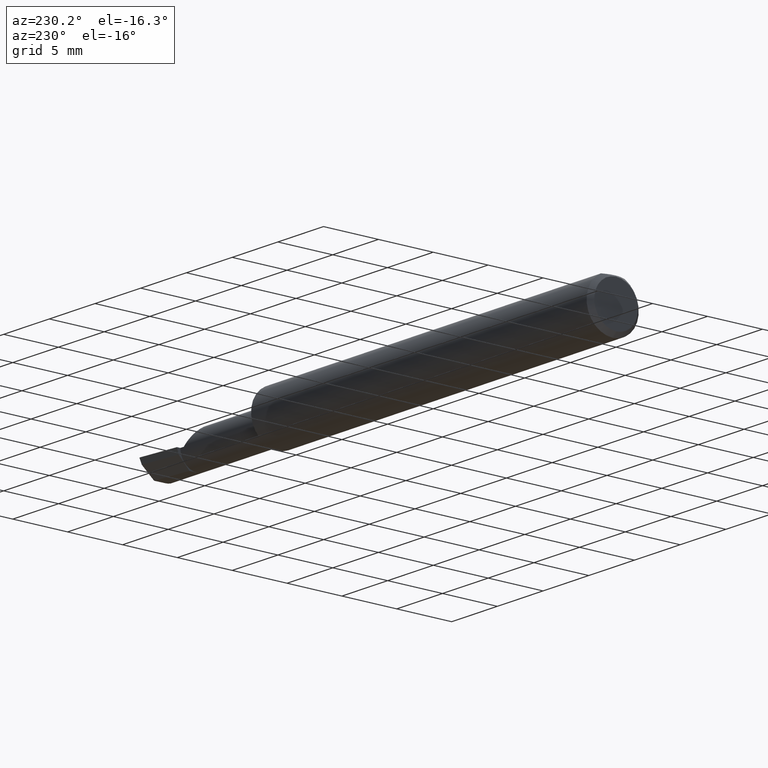
[diagram: clean part render]
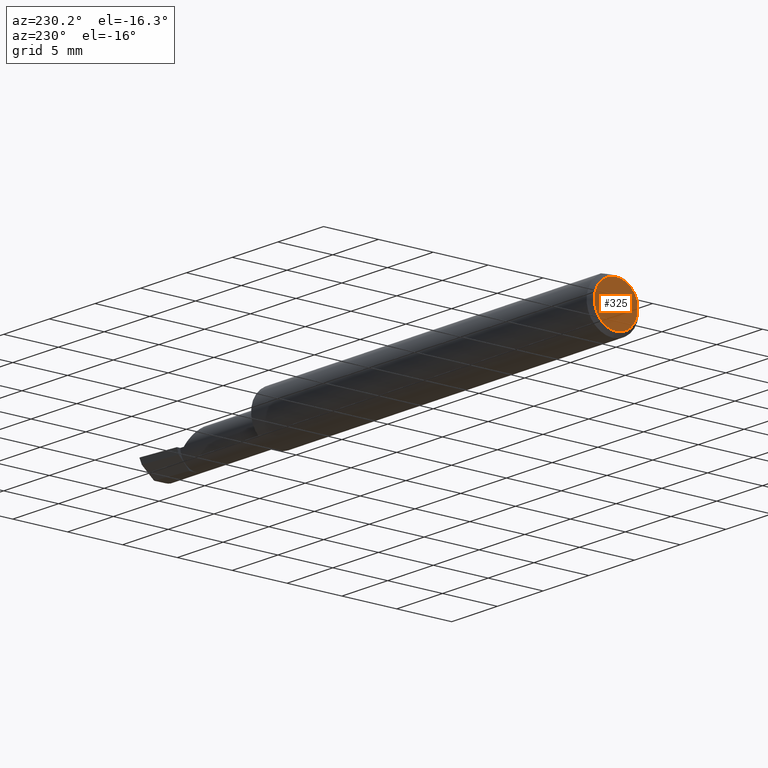
[diagram: same view with one face highlighted and labeled with its STEP entity id]
A machine part, auxiliary view. The second image highlights one B-rep face of the part: STEP entity #325.
In plain terms, the highlighted planar face has unit normal (1, 0, 0).
Its self-contained STEP definition (entity closure, byte-faithful):
#42 = DIRECTION ( 'NONE',  ( 1.000000000000000000, 0.0000000000000000000, 0.0000000000000000000 ) ) ;
#68 = AXIS2_PLACEMENT_3D ( 'NONE', #272, #487, #85 ) ;
#72 = DIRECTION ( 'NONE',  ( -1.000000000000000000, -0.0000000000000000000, -0.0000000000000000000 ) ) ;
#85 = DIRECTION ( 'NONE',  ( 0.0000000000000000000, 0.0000000000000000000, 1.000000000000000000 ) ) ;
#155 = CIRCLE ( 'NONE', #656, 0.07859999999999965625 ) ;
#188 = CIRCLE ( 'NONE', #68, 0.07859999999999965625 ) ;
#203 = ORIENTED_EDGE ( 'NONE', *, *, #280, .T. ) ;
#213 = CARTESIAN_POINT ( 'NONE',  ( 0.0000000000000000000, 0.0000000000000000000, 0.0000000000000000000 ) ) ;
#272 = CARTESIAN_POINT ( 'NONE',  ( 0.0000000000000000000, 0.0000000000000000000, 0.0000000000000000000 ) ) ;
#278 = PLANE ( 'NONE',  #387 ) ;
#280 = EDGE_CURVE ( 'NONE', #355, #555, #188, .T. ) ;
#325 = ADVANCED_FACE ( 'NONE', ( #339 ), #278, .F. ) ;
#339 = FACE_OUTER_BOUND ( 'NONE', #647, .T. ) ;
#355 = VERTEX_POINT ( 'NONE', #649 ) ;
#382 = CARTESIAN_POINT ( 'NONE',  ( 0.0000000000000000000, 0.0000000000000000000, 0.0000000000000000000 ) ) ;
#387 = AXIS2_PLACEMENT_3D ( 'NONE', #382, #42, #497 ) ;
#414 = DIRECTION ( 'NONE',  ( 0.0000000000000000000, 0.0000000000000000000, 1.000000000000000000 ) ) ;
#487 = DIRECTION ( 'NONE',  ( -1.000000000000000000, -0.0000000000000000000, -0.0000000000000000000 ) ) ;
#497 = DIRECTION ( 'NONE',  ( 0.0000000000000000000, 0.0000000000000000000, -1.000000000000000000 ) ) ;
#504 = CARTESIAN_POINT ( 'NONE',  ( 0.0000000000000000000, 1.054420894065869177E-17, 0.07859999999999965625 ) ) ;
#555 = VERTEX_POINT ( 'NONE', #504 ) ;
#595 = ORIENTED_EDGE ( 'NONE', *, *, #657, .T. ) ;
#647 = EDGE_LOOP ( 'NONE', ( #203, #595 ) ) ;
#649 = CARTESIAN_POINT ( 'NONE',  ( 0.0000000000000000000, 0.0000000000000000000, -0.07859999999999965625 ) ) ;
#656 = AXIS2_PLACEMENT_3D ( 'NONE', #213, #72, #414 ) ;
#657 = EDGE_CURVE ( 'NONE', #555, #355, #155, .T. ) ;